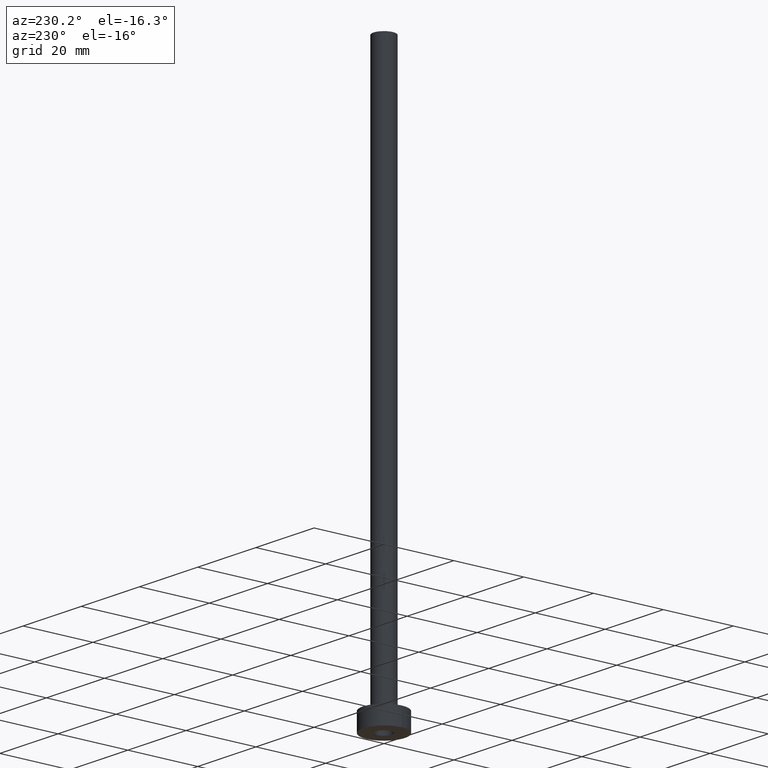
[diagram: clean part render]
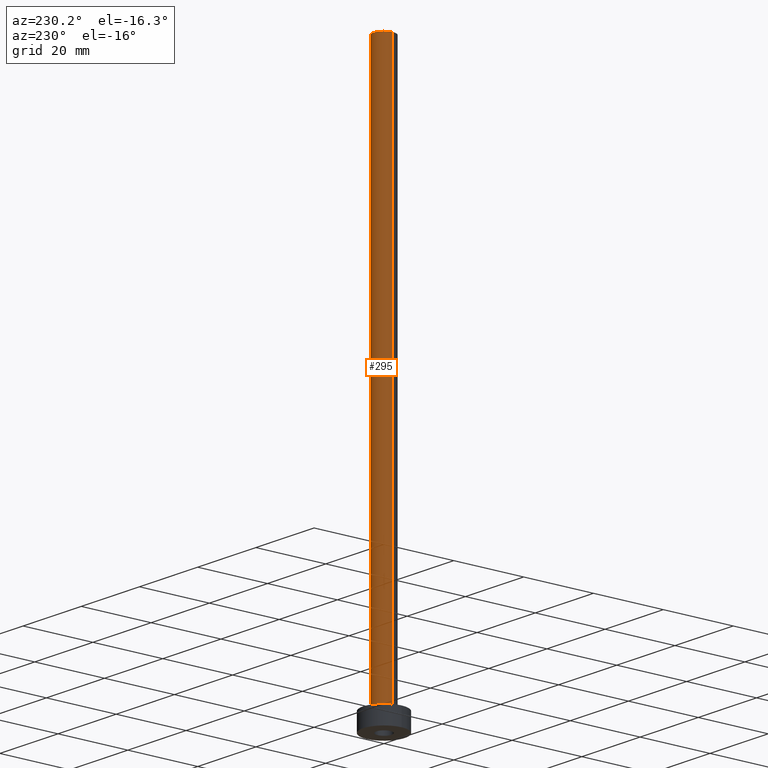
[diagram: same view with one face highlighted and labeled with its STEP entity id]
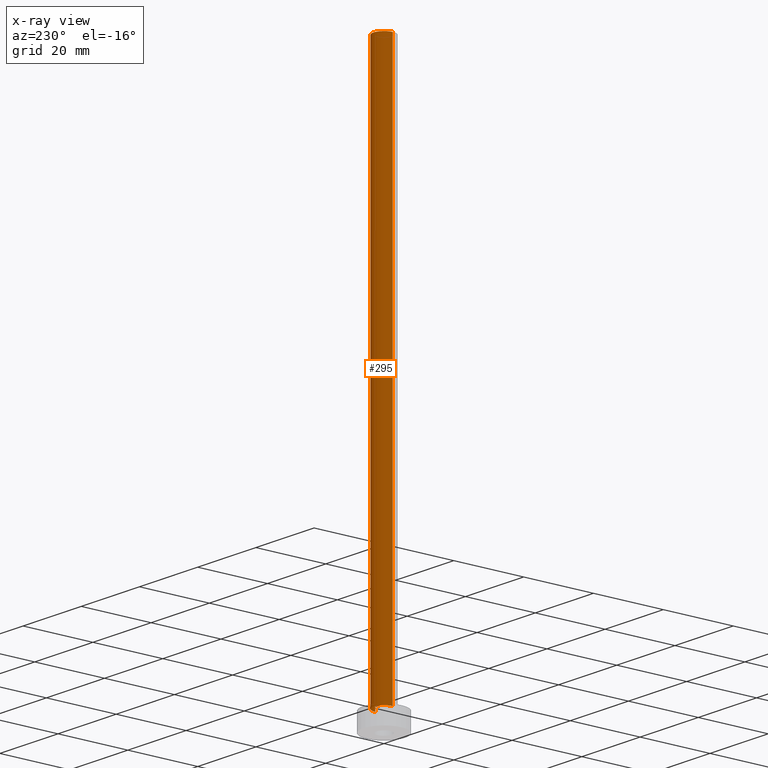
[diagram: x-ray of the same camera — body ghosted, the highlighted face saturated]
A machine part, auxiliary view. The second image highlights one B-rep face of the part: STEP entity #295.
The next image is the same camera in x-ray: the body ghosted, the highlighted face saturated — about 0% of this face is hidden behind the body in this view.
In plain terms, the highlighted cylindrical surface (edge-blend (fillet) strip) has radius 3 mm, axis along (-0, -0, -1).
Its self-contained STEP definition (entity closure, byte-faithful):
#7 = AXIS2_PLACEMENT_3D ( 'NONE', #432, #290, #252 ) ;
#11 = CARTESIAN_POINT ( 'NONE',  ( -3.000000000000000444, 0.000000000000000000, 160.0000000000000000 ) ) ;
#14 = CIRCLE ( 'NONE', #7, 3.000000000000000444 ) ;
#19 = ORIENTED_EDGE ( 'NONE', *, *, #43, .T. ) ;
#26 = VERTEX_POINT ( 'NONE', #253 ) ;
#43 = EDGE_CURVE ( 'NONE', #343, #332, #262, .T. ) ;
#62 = EDGE_CURVE ( 'NONE', #277, #343, #147, .T. ) ;
#64 = AXIS2_PLACEMENT_3D ( 'NONE', #320, #419, #116 ) ;
#70 = CARTESIAN_POINT ( 'NONE',  ( 3.000000000000000444, 3.673940397442060361E-16, 160.0000000000000000 ) ) ;
#74 = CARTESIAN_POINT ( 'NONE',  ( 3.000000000000000444, 3.673940397442060361E-16, 160.0000000000000000 ) ) ;
#100 = LINE ( 'NONE', #11, #341 ) ;
#104 = VECTOR ( 'NONE', #217, 1000.000000000000000 ) ;
#110 = ORIENTED_EDGE ( 'NONE', *, *, #379, .F. ) ;
#116 = DIRECTION ( 'NONE',  ( 1.000000000000000000, 0.000000000000000000, 0.000000000000000000 ) ) ;
#127 = CARTESIAN_POINT ( 'NONE',  ( 3.000000000000000444, 3.673940397442060361E-16, 5.500000000000005329 ) ) ;
#138 = AXIS2_PLACEMENT_3D ( 'NONE', #241, #422, #237 ) ;
#143 = CYLINDRICAL_SURFACE ( 'NONE', #138, 3.000000000000000444 ) ;
#147 = LINE ( 'NONE', #70, #104 ) ;
#154 = EDGE_CURVE ( 'NONE', #26, #332, #100, .T. ) ;
#217 = DIRECTION ( 'NONE',  ( -0.000000000000000000, -0.000000000000000000, -1.000000000000000000 ) ) ;
#219 = FACE_OUTER_BOUND ( 'NONE', #303, .T. ) ;
#237 = DIRECTION ( 'NONE',  ( -1.000000000000000000, 0.000000000000000000, 0.000000000000000000 ) ) ;
#241 = CARTESIAN_POINT ( 'NONE',  ( 0.000000000000000000, 0.000000000000000000, 160.0000000000000000 ) ) ;
#252 = DIRECTION ( 'NONE',  ( 1.000000000000000000, 0.000000000000000000, 0.000000000000000000 ) ) ;
#253 = CARTESIAN_POINT ( 'NONE',  ( -3.000000000000000444, 0.000000000000000000, 160.0000000000000000 ) ) ;
#262 = CIRCLE ( 'NONE', #64, 3.000000000000000444 ) ;
#277 = VERTEX_POINT ( 'NONE', #74 ) ;
#290 = DIRECTION ( 'NONE',  ( 0.000000000000000000, 0.000000000000000000, 1.000000000000000000 ) ) ;
#295 = ADVANCED_FACE ( 'NONE', ( #219 ), #143, .T. ) ;
#303 = EDGE_LOOP ( 'NONE', ( #110, #369, #19, #357 ) ) ;
#320 = CARTESIAN_POINT ( 'NONE',  ( 0.000000000000000000, 0.000000000000000000, 5.500000000000005329 ) ) ;
#332 = VERTEX_POINT ( 'NONE', #387 ) ;
#341 = VECTOR ( 'NONE', #440, 1000.000000000000000 ) ;
#343 = VERTEX_POINT ( 'NONE', #127 ) ;
#357 = ORIENTED_EDGE ( 'NONE', *, *, #154, .F. ) ;
#369 = ORIENTED_EDGE ( 'NONE', *, *, #62, .T. ) ;
#379 = EDGE_CURVE ( 'NONE', #277, #26, #14, .T. ) ;
#387 = CARTESIAN_POINT ( 'NONE',  ( -3.000000000000000444, 0.000000000000000000, 5.500000000000005329 ) ) ;
#419 = DIRECTION ( 'NONE',  ( 0.000000000000000000, 0.000000000000000000, 1.000000000000000000 ) ) ;
#422 = DIRECTION ( 'NONE',  ( -0.000000000000000000, -0.000000000000000000, -1.000000000000000000 ) ) ;
#432 = CARTESIAN_POINT ( 'NONE',  ( 0.000000000000000000, 0.000000000000000000, 160.0000000000000000 ) ) ;
#440 = DIRECTION ( 'NONE',  ( -0.000000000000000000, -0.000000000000000000, -1.000000000000000000 ) ) ;